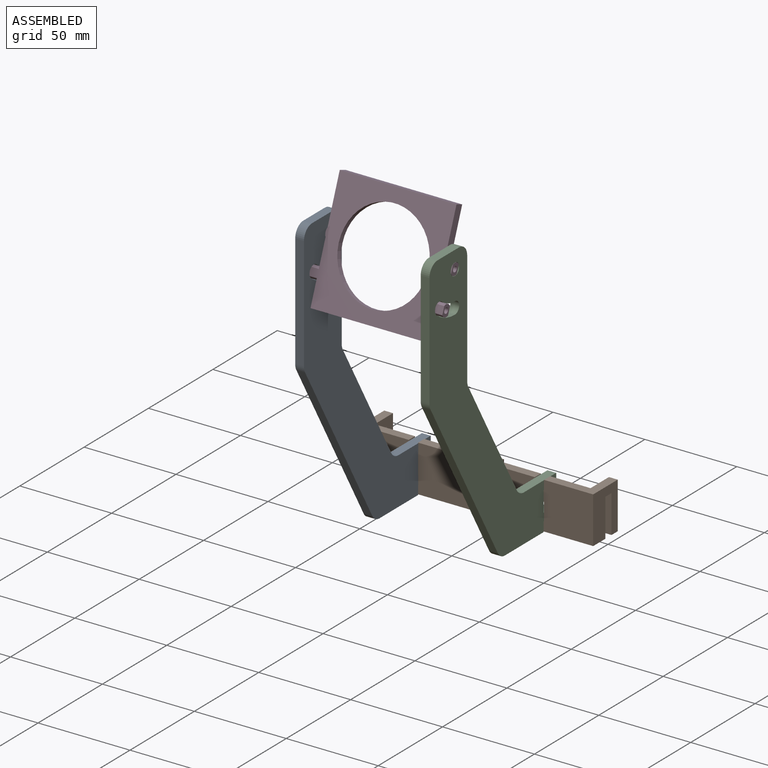
[diagram: assembled view]
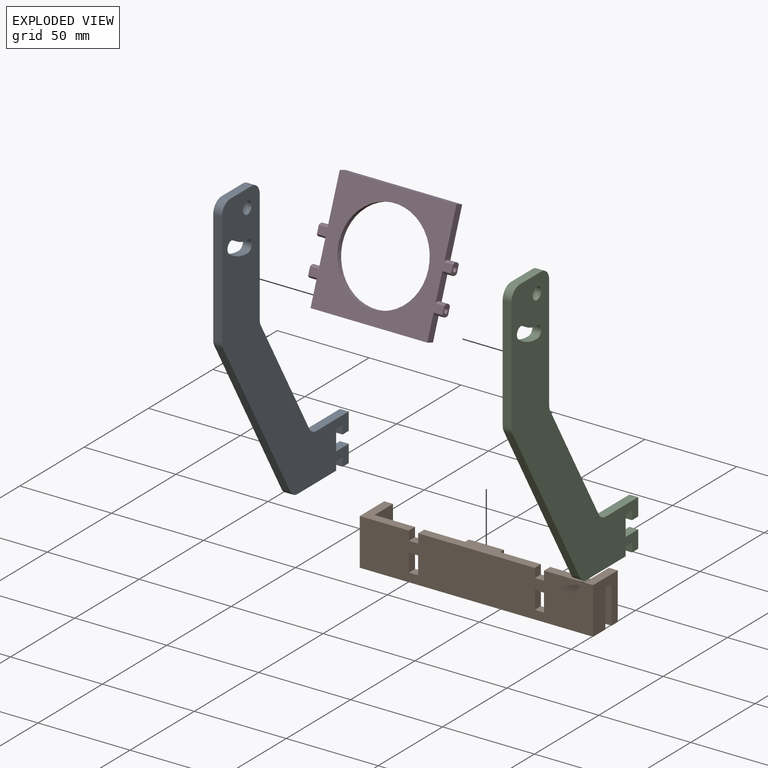
[diagram: exploded view]
GUIDED TOUR — MATED ASSEMBLY (Onshape document 58cdf79a72d10c0f7b2a12ae, AutoMate assembly 58cdf79a72d10c0f7b2a12ae_6b5fa0cb3d8d561fa44b1c68_1ecf127a2d13dc4be6b9e49f_default)

This assembly has 4 components, labeled P0..P3 below (a component is one placed occurrence of a part; the same part can appear more than once), held together by 2 mates. A mate is a constraint between two components; its type names the relative motion it leaves free:
  FASTENED — locks the two components together rigidly (no relative motion),
  REVOLUTE — leaves rotation about the listed axis free (a hinge).
Axis/direction vectors are unit vectors and 'through' points are millimeter coordinates, both in the assembly's world frame.

MATES
  1. REVOLUTE "Revolute 1": P2 <-> P3, axis (1.000, 0.000, 0.000) through (-71.74, -59.29, 140.84) mm
  2. FASTENED "Fastened 3": P2 <-> P1, direction (0.000, 0.000, -1.000) through (-74.12, 12.12, 5.90) mm

ASSEMBLY ORDER
  1. P3 — the base component [order verified]
  2. P2 [order verified]
  3. P0 [order verified]
  4. P1 [order verified]
(P0, P2 verified with a relaxed clearance tolerance: the source model stores slight part interference there.)
Order-tag legend:
  [order verified] — this step's position reverses a verified removal order: the component was checked to insert without passing through the ones already placed.

Of the 4 components, 1 carries the full construction recipe — the FeatureScript program that regenerates the part's solid from scratch; the rest are supplied as boundary geometry only.
Each toured component is shown spotlighted twice — in the assembled view, then in the exploded view, where a leader line traces a displaced component back to its assembled socket (saturated green if recipe-attached, orange if geometry-only; every other component desaturated gray) — followed by its recipe or geometry summary and the mates that hold it.
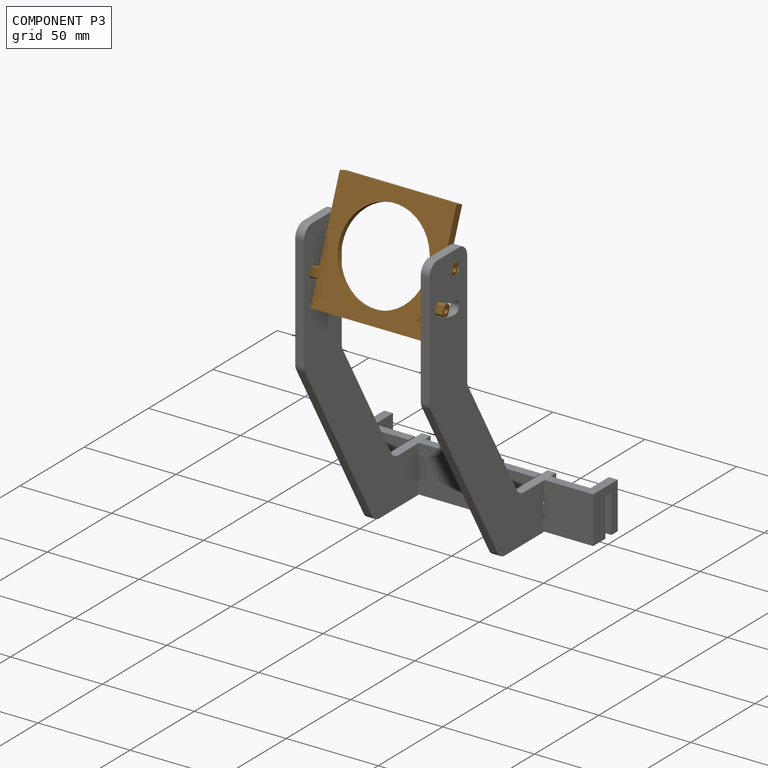
[diagram: component P3 — assembled]
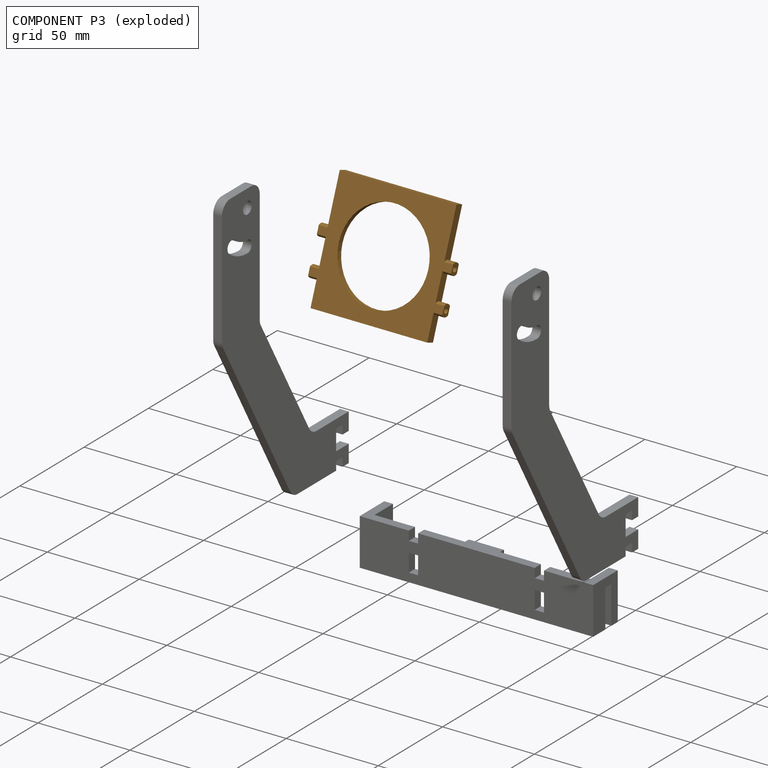
[diagram: component P3 — exploded]
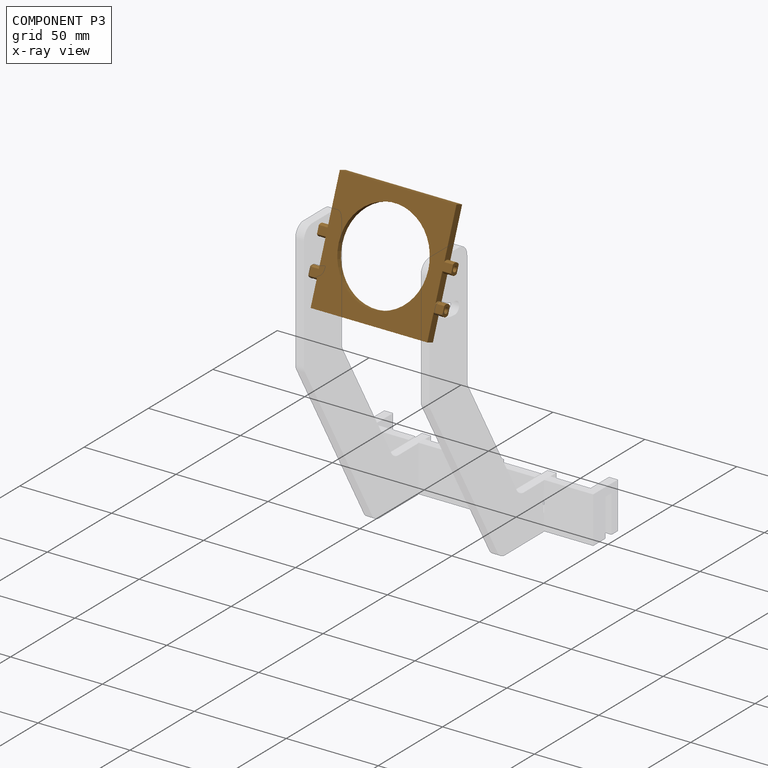
[diagram: component P3 — x-ray view]
COMPONENT P3 — geometry summary (no construction recipe available for this part):
  bounding box: 73.0 x 63.5 x 4.8 mm
  B-rep topology: 1 solid, 33 faces, 166 edges
  volume: 9212 mm^3 (42% of its bounding box)
  symmetry: mirror-symmetric across its x mid-plane
Held by: REVOLUTE mate "Revolute 1" to P2.
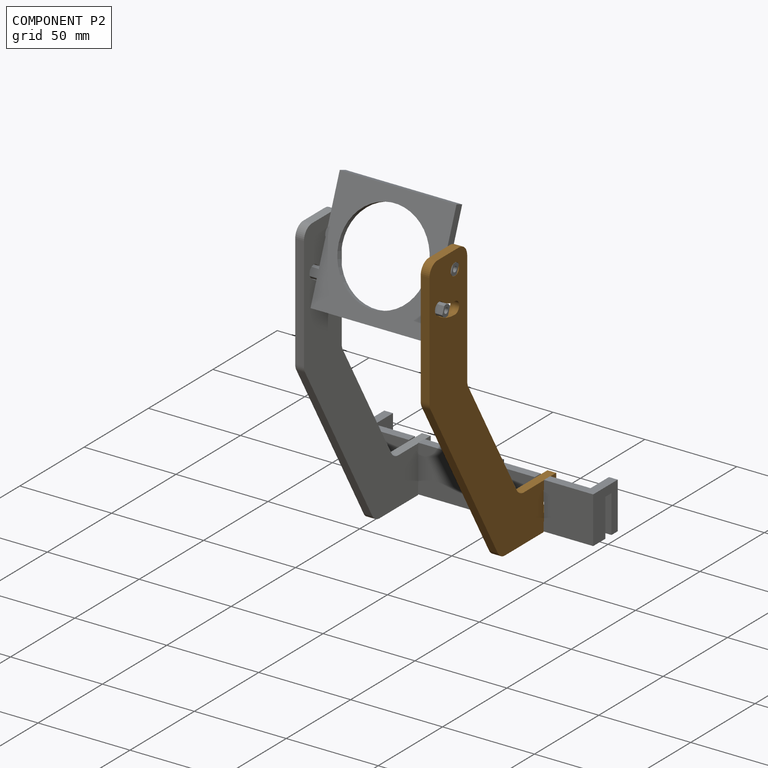
[diagram: component P2 — assembled]
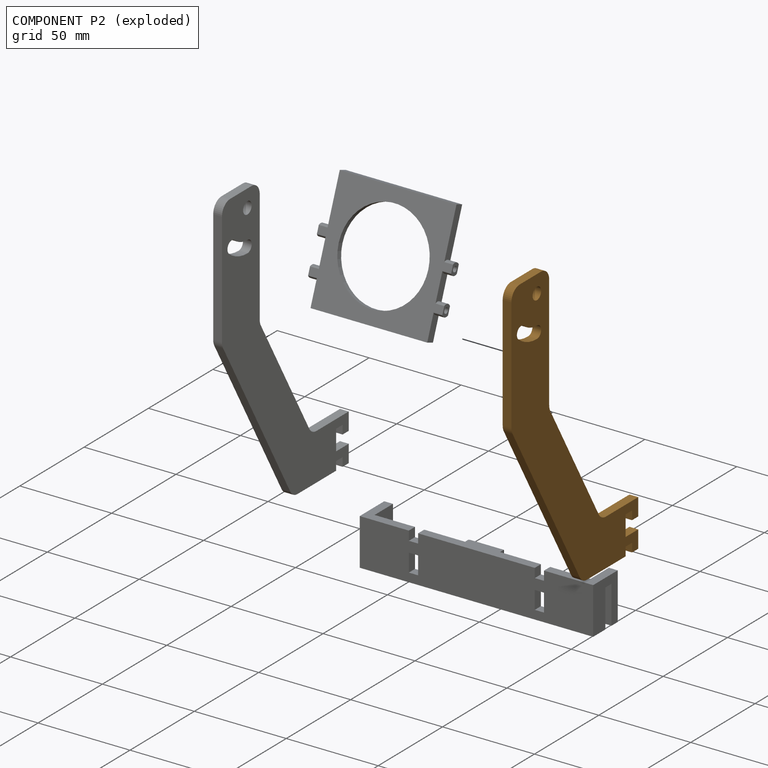
[diagram: component P2 — exploded]
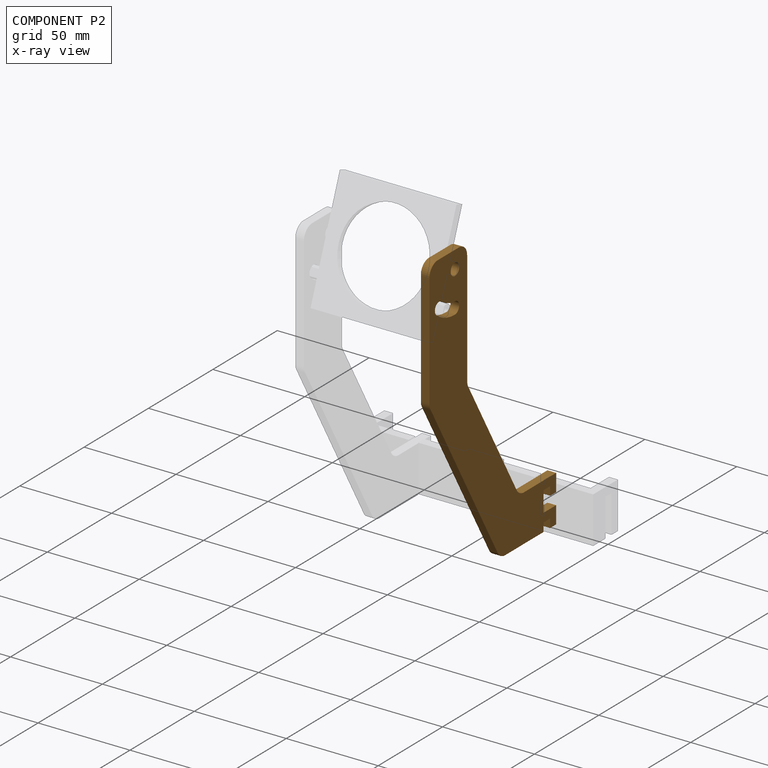
[diagram: component P2 — x-ray view]
COMPONENT P2 — geometry summary (no construction recipe available for this part):
  bounding box: 165.1 x 98.5 x 4.8 mm
  B-rep topology: 1 solid, 31 faces, 176 edges
  volume: 24311 mm^3 (31% of its bounding box)
  symmetry: mirror-symmetric across its x mid-plane
Held by: REVOLUTE mate "Revolute 1" to P3; FASTENED mate "Fastened 3" to P1.
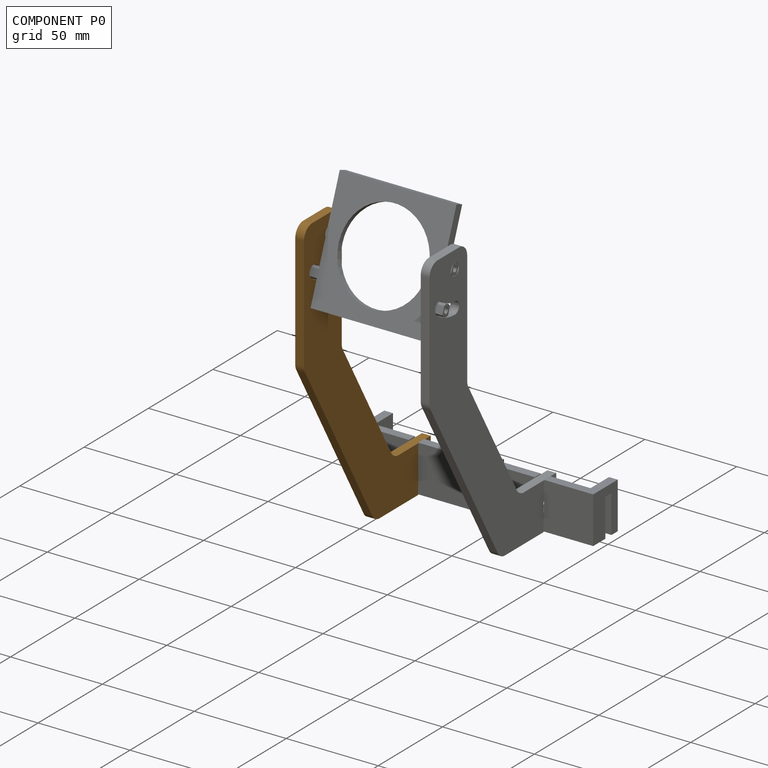
[diagram: component P0 — assembled]
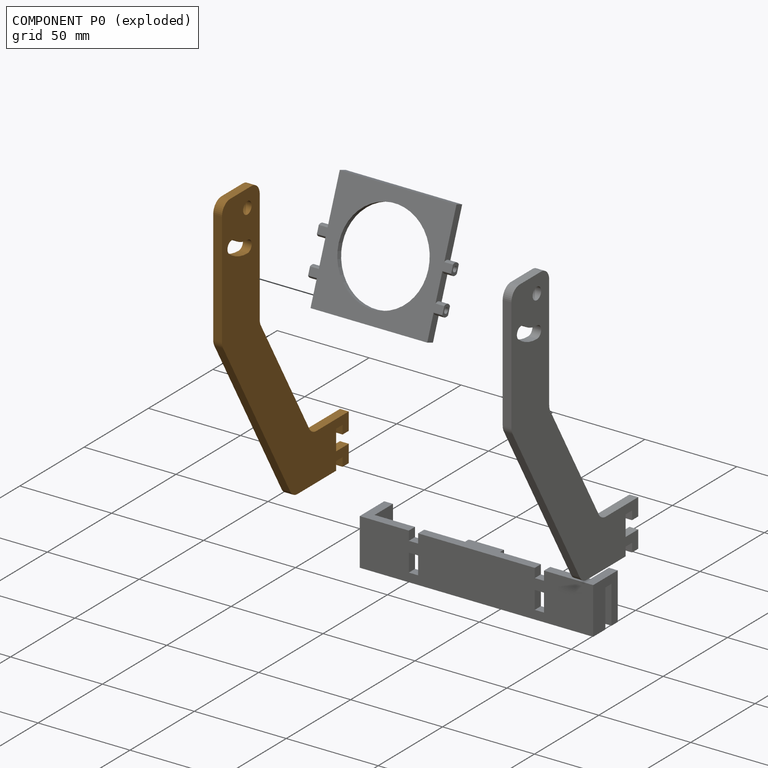
[diagram: component P0 — exploded]
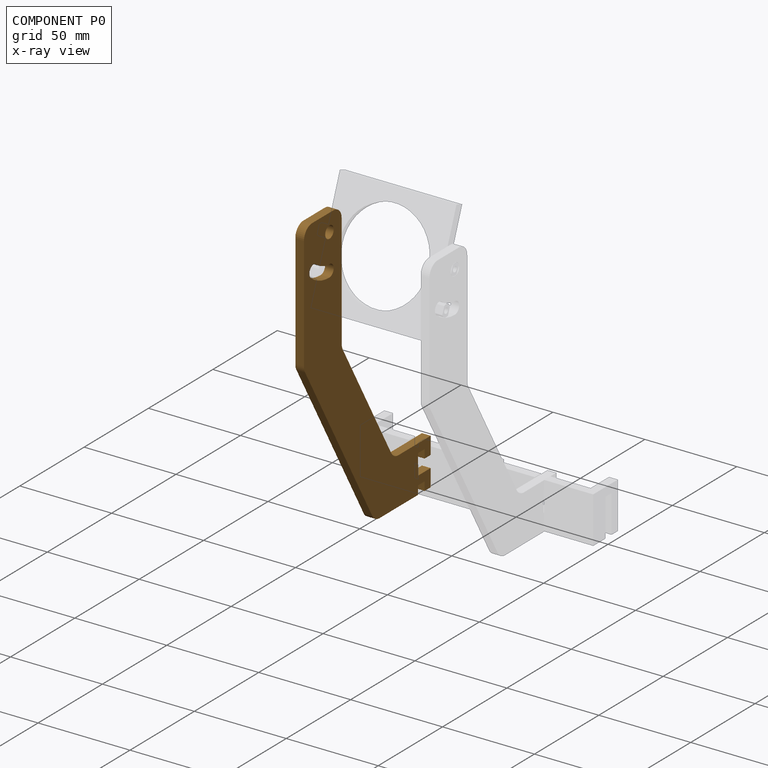
[diagram: component P0 — x-ray view]
COMPONENT P0 — geometry summary (no construction recipe available for this part):
  bounding box: 165.1 x 98.5 x 4.8 mm
  B-rep topology: 1 solid, 31 faces, 176 edges
  volume: 24311 mm^3 (31% of its bounding box)
  symmetry: mirror-symmetric across its x mid-plane
Held by: no mates (free).
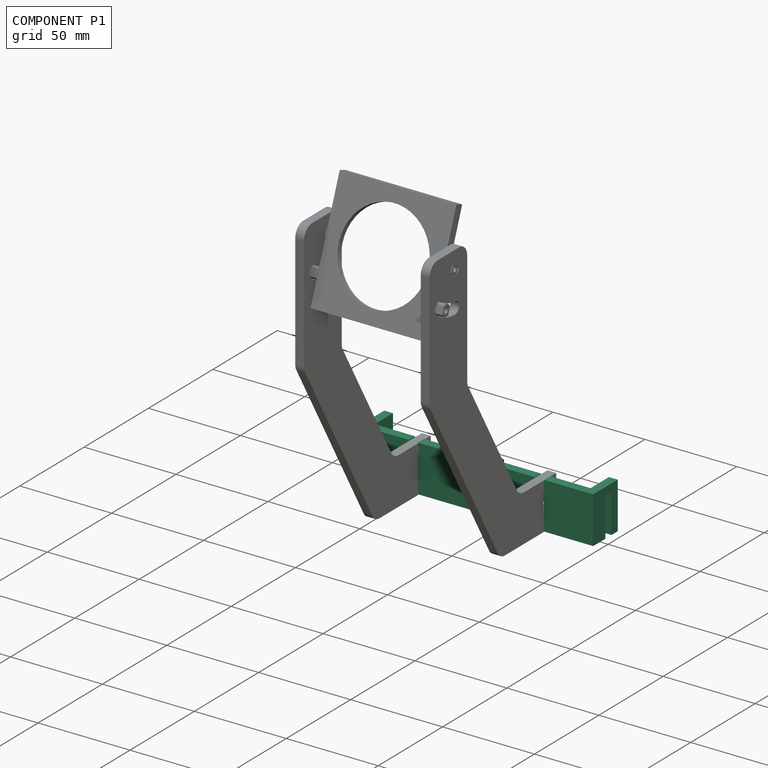
[diagram: component P1 — assembled]
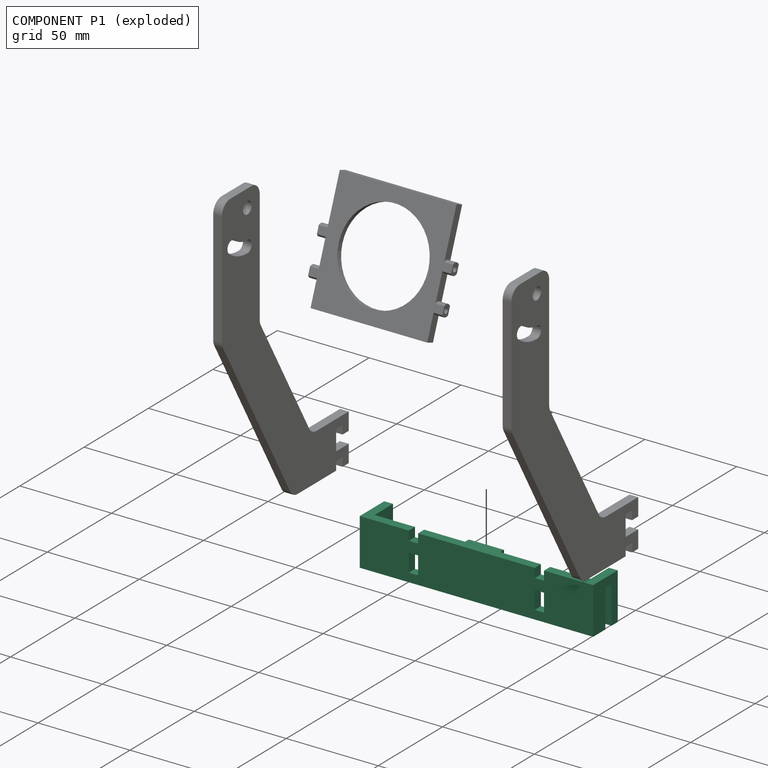
[diagram: component P1 — exploded]
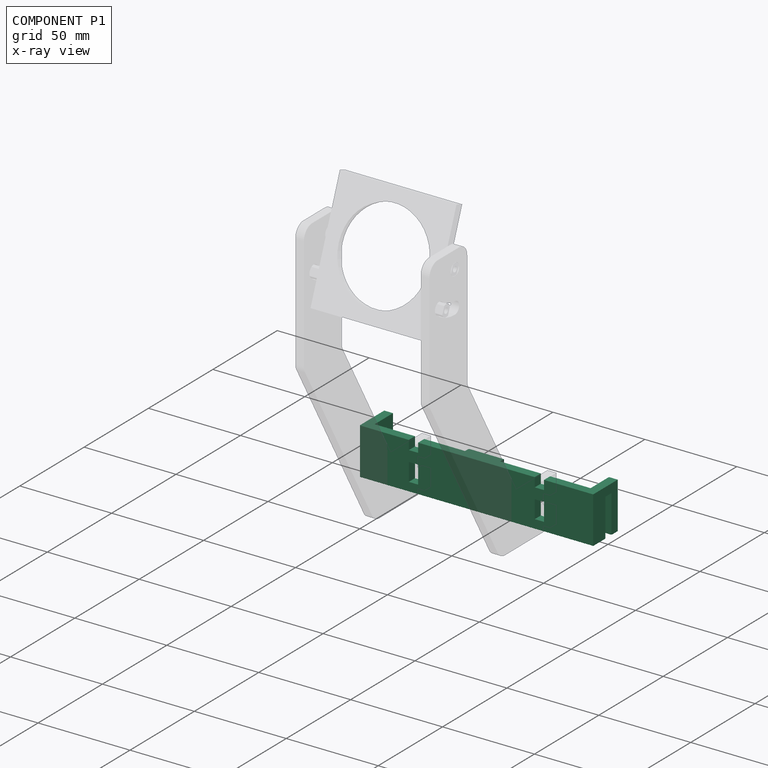
[diagram: component P1 — x-ray view]
COMPONENT P1 — recipe-attached (CADFS 00630429, mesh-verified: the recipe's output STEP matches this component's geometry to below the mesh-comparison resolution (tessellation chordal tolerance ~0.196 mm)).
Held by: FASTENED mate "Fastened 3" to P2.
Construction recipe (FeatureScript — the CAD program that rebuilds this solid; sketch coordinates are in the units given by the * unit suffixes, e.g. mm):

FeatureScript 1511;
import(path : "onshape/std/geometry.fs", version : "1511.0");
import(path : "onshape/std/common.fs", version : "1511.0");
const mm = millimeter;
const VERTEX = EntityType.VERTEX;
const EDGE = EntityType.EDGE;
const FACE = EntityType.FACE;
const BODY = EntityType.BODY;
function v(x, y){return vector(x, y);}
function OD(order){return orderDisambiguation(order);}
function OSD(set){return originalSetDisambiguation(set);}
function TD(topology){return topologyDisambiguation(topology);}
function TDD(query){return trueDependencyDisambiguation(query);}
function sQuery(a, b, c) {return sketchEntityQuery(a, b, c);}

annotation { "Feature Type Name" : "Feature", "Feature Type Description" : "" }
export const myFeature = defineFeature(function(context is Context, id is Id, definition is map)
    precondition{}
    {
        {
            var Q0;
            Q0=qCreatedBy(makeId("Front.planeOp"),FACE);
            var sketch = newSketch(context, id + "F0", { "sketchPlane" : qUnion([Q0])});
            skLineSegment(sketch, "E0.bottom", {"start": v(0, 0) * mm, "end": v(127, 0) * mm});
            skLineSegment(sketch, "E0.top", {"start": v(0, 25.4) * mm, "end": v(127, 25.4) * mm});
            skLineSegment(sketch, "E0.left", {"start": v(0, 0) * mm, "end": v(0, 25.4) * mm});
            skLineSegment(sketch, "E0.right", {"start": v(127, 0) * mm, "end": v(127, 25.4) * mm});
            skSolve(sketch);
        }
        {
            var Q0;
            Q0=makeQuery(id+"F0.imprint","IMPRINT",FACE,{"disambiguationData":[TD([[makeQuery(id+"F0.imprint","IMPRINT",EDGE,{"derivedFrom":sQuery(id+"F0.wireOp",EDGE,"E0.bottom")}),1.0]])]});
            extrude(context, id + "F1", {"entities" : qUnion([Q0]), "depth" : 4.76 * mm});
        }
        {
            var Q0;
            Q0=makeQuery(id+"F1.opExtrude","SWEPT_FACE",FACE,{"disambiguationData":[OSD([sQuery(id+"F0.wireOp",EDGE,"E0.right")])]});
            var sketch = newSketch(context, id + "F2", { "sketchPlane" : qUnion([Q0])});
            skLineSegment(sketch, "E1", {"start": v(-4.76, 25.4) * mm, "end": v(-19.05, 25.4) * mm});
            skLineSegment(sketch, "E2", {"start": v(-19.05, 25.4) * mm, "end": v(-19.05, 0) * mm});
            skLineSegment(sketch, "E3", {"start": v(-19.05, 0) * mm, "end": v(-14.29, 0) * mm});
            skLineSegment(sketch, "E4", {"start": v(-14.29, 0) * mm, "end": v(-14.29, 20.64) * mm});
            skLineSegment(sketch, "E5", {"start": v(-14.29, 20.64) * mm, "end": v(-9.53, 20.64) * mm});
            skLineSegment(sketch, "E6", {"start": v(-9.53, 20.64) * mm, "end": v(-9.53, 0) * mm});
            skLineSegment(sketch, "E7", {"start": v(-9.53, 0) * mm, "end": v(-4.76, 0) * mm});
            skLineSegment(sketch, "E8", {"start": v(-4.76, 0) * mm, "end": v(-4.76, 25.4) * mm});
            skSolve(sketch);
        }
        {
            var Q0;
            Q0=makeQuery(id+"F2.imprint","IMPRINT",FACE,{"disambiguationData":[TD([[makeQuery(id+"F2.imprint","IMPRINT",EDGE,{"derivedFrom":sQuery(id+"F2.wireOp",EDGE,"E1")}),1.0]])]});
            extrude(context, id + "F3", {"entities" : qUnion([Q0]), "operationType" : NewBodyOperationType.ADD, "oppositeDirection" : true, "depth" : 4.76 * mm});
        }
        {
            var Q0;
            Q0=makeQuery(id+"F1.opExtrude","SWEPT_FACE",FACE,{"disambiguationData":[OSD([sQuery(id+"F0.wireOp",EDGE,"E0.left")])]});
            var sketch = newSketch(context, id + "F4", { "sketchPlane" : qUnion([Q0])});
            skLineSegment(sketch, "E9.0.0", {"start": v(4.76, 0) * mm, "end": v(4.76, 25.4) * mm});
            skLineSegment(sketch, "E9.0.1", {"start": v(9.53, 0) * mm, "end": v(4.76, 0) * mm});
            skLineSegment(sketch, "E9.0.2", {"start": v(9.53, 20.64) * mm, "end": v(9.53, 0) * mm});
            skLineSegment(sketch, "E9.0.3", {"start": v(14.29, 20.64) * mm, "end": v(9.53, 20.64) * mm});
            skLineSegment(sketch, "E9.0.4", {"start": v(14.29, 0) * mm, "end": v(14.29, 20.64) * mm});
            skLineSegment(sketch, "E9.0.5", {"start": v(19.05, 0) * mm, "end": v(14.29, 0) * mm});
            skLineSegment(sketch, "E9.0.6", {"start": v(19.05, 25.4) * mm, "end": v(19.05, 0) * mm});
            skLineSegment(sketch, "E9.0.7", {"start": v(4.76, 25.4) * mm, "end": v(19.05, 25.4) * mm});
            skSolve(sketch);
        }
        {
            var Q0;
            Q0=makeQuery(id+"F4.imprint","IMPRINT",FACE,{"disambiguationData":[TD([[makeQuery(id+"F4.imprint","IMPRINT",EDGE,{"derivedFrom":sQuery(id+"F4.wireOp",EDGE,"E9.0.0")}),-1.0]])]});
            extrude(context, id + "F5", {"entities" : qUnion([Q0]), "operationType" : NewBodyOperationType.ADD, "oppositeDirection" : true, "depth" : 4.76 * mm});
        }
        {
            var Q0;
            Q0=makeQuery(id+"F1.opExtrude","CAP_FACE",FACE,{"disambiguationData":[OSD([sQuery(id+"F0.wireOp",EDGE,"E0.bottom"),sQuery(id+"F0.wireOp",EDGE,"E0.top"),sQuery(id+"F0.wireOp",EDGE,"E0.left"),sQuery(id+"F0.wireOp",EDGE,"E0.right")])],"isStart":false});
            var sketch = newSketch(context, id + "F6", { "sketchPlane" : qUnion([Q0])});
            skLineSegment(sketch, "E10", {"start": v(63.5, 25.4) * mm, "end": v(63.5, 0) * mm, "construction": true});
            skPoint(sketch, "E11", {"position": v(63.5, 12.7) * mm});
            skLineSegment(sketch, "E12.bottom", {"start": v(57.58, 25.4) * mm, "end": v(73.02, 25.4) * mm});
            skLineSegment(sketch, "E12.top", {"start": v(57.58, 0) * mm, "end": v(69.42, 0) * mm});
            skLineSegment(sketch, "E12.left", {"start": v(53.97, 21.8) * mm, "end": v(53.97, 3.6) * mm});
            skLineSegment(sketch, "E12.right", {"start": v(73.02, 25.4) * mm, "end": v(73.02, 3.6) * mm});
            skLineSegment(sketch, "E13", {"start": v(53.97, 25.4) * mm, "end": v(73.03, 0) * mm, "construction": true});
            skPoint(sketch, "E14.visualSharp", {"position": v(53.97, 25.4) * mm});
            skPoint(sketch, "E15.visualSharp", {"position": v(73.02, 25.4) * mm});
            skPoint(sketch, "E16.visualSharp", {"position": v(73.02, 0) * mm});
            skArc(sketch, "E16.filletArc", {"start": v(69.42, 0) * mm, "mid": v(71.97, 1.05) * mm, "end": v(73.02, 3.6) * mm});
            skPoint(sketch, "E17.visualSharp", {"position": v(53.97, 0) * mm});
            skArc(sketch, "E17.filletArc", {"start": v(53.97, 3.6) * mm, "mid": v(55.03, 1.05) * mm, "end": v(57.58, 0) * mm});
            skLineSegment(sketch, "E18", {"start": v(57.58, 25.4) * mm, "end": v(53.97, 25.4) * mm});
            skLineSegment(sketch, "E19", {"start": v(53.97, 21.8) * mm, "end": v(53.97, 25.4) * mm});
            skSolve(sketch);
        }
        {
            var Q0;
            Q0=makeQuery(id+"F6.imprint","IMPRINT",FACE,{"disambiguationData":[TD([[makeQuery(id+"F6.imprint","IMPRINT",EDGE,{"derivedFrom":sQuery(id+"F6.wireOp",EDGE,"E12.bottom")}),-1.0]])]});
            extrude(context, id + "F7", {"entities" : qUnion([Q0]), "operationType" : NewBodyOperationType.ADD, "depth" : 4.76 * mm});
        }
        {
            var Q0;
            Q0=makeQuery(id+"F7.opExtrude","CAP_FACE",FACE,{"disambiguationData":[OSD([sQuery(id+"F6.wireOp",EDGE,"E12.bottom"),sQuery(id+"F6.wireOp",EDGE,"E12.top"),sQuery(id+"F6.wireOp",EDGE,"E12.left"),sQuery(id+"F6.wireOp",EDGE,"E12.right"),sQuery(id+"F6.wireOp",EDGE,"E16.filletArc"),sQuery(id+"F6.wireOp",EDGE,"E17.filletArc"),sQuery(id+"F6.wireOp",EDGE,"E19")])],"isStart":false});
            fillet(context, id + "F8", {"entities" : qUnion([Q0]), "radius" : 2.54 * mm, "tangentPropagation" : true, "allowEdgeOverflow" : false});
        }
        {
            var Q0;
            Q0=makeQuery(id+"F1.opExtrude","CAP_FACE",FACE,{"disambiguationData":[OSD([sQuery(id+"F0.wireOp",EDGE,"E0.bottom"),sQuery(id+"F0.wireOp",EDGE,"E0.top"),sQuery(id+"F0.wireOp",EDGE,"E0.left"),sQuery(id+"F0.wireOp",EDGE,"E0.right")])],"isStart":true});
            var sketch = newSketch(context, id + "F9", { "sketchPlane" : qUnion([Q0])});
            skLineSegment(sketch, "E20", {"start": v(-63.5, 25.4) * mm, "end": v(-63.5, 0) * mm, "construction": true});
            skLineSegment(sketch, "E21", {"start": v(-95.25, 25.4) * mm, "end": v(-95.25, 0) * mm, "construction": true});
            skLineSegment(sketch, "E22", {"start": v(-31.75, 25.4) * mm, "end": v(-31.75, 0) * mm, "construction": true});
            skLineSegment(sketch, "E23.bottom", {"start": v(-95.25, 25.4) * mm, "end": v(-100.27, 25.4) * mm});
            skLineSegment(sketch, "E23.top", {"start": v(-95.25, 20.38) * mm, "end": v(-100.27, 20.38) * mm});
            skLineSegment(sketch, "E23.left", {"start": v(-95.25, 25.4) * mm, "end": v(-95.25, 20.38) * mm});
            skLineSegment(sketch, "E23.right", {"start": v(-100.27, 25.4) * mm, "end": v(-100.27, 20.38) * mm});
            skLineSegment(sketch, "E24.bottom", {"start": v(-95.25, 14.54) * mm, "end": v(-100.27, 14.54) * mm});
            skLineSegment(sketch, "E24.top", {"start": v(-95.25, 4.76) * mm, "end": v(-100.27, 4.76) * mm});
            skLineSegment(sketch, "E24.left", {"start": v(-95.25, 14.54) * mm, "end": v(-95.25, 4.76) * mm});
            skLineSegment(sketch, "E24.right", {"start": v(-100.27, 14.54) * mm, "end": v(-100.27, 4.76) * mm});
            skLineSegment(sketch, "E25.0.MirrorCS", {"start": v(-31.75, 25.4) * mm, "end": v(-26.73, 25.4) * mm});
            skLineSegment(sketch, "E25.1.MirrorCS", {"start": v(-31.75, 20.38) * mm, "end": v(-26.73, 20.38) * mm});
            skLineSegment(sketch, "E25.2.MirrorCS", {"start": v(-31.75, 14.54) * mm, "end": v(-31.75, 4.76) * mm});
            skLineSegment(sketch, "E25.3.MirrorCS", {"start": v(-26.73, 14.54) * mm, "end": v(-26.73, 4.76) * mm});
            skLineSegment(sketch, "E25.4.MirrorCS", {"start": v(-31.75, 14.54) * mm, "end": v(-26.73, 14.54) * mm});
            skLineSegment(sketch, "E25.5.MirrorCS", {"start": v(-31.75, 4.76) * mm, "end": v(-26.73, 4.76) * mm});
            skLineSegment(sketch, "E25.6.MirrorCS", {"start": v(-26.73, 25.4) * mm, "end": v(-26.73, 20.38) * mm});
            skLineSegment(sketch, "E25.7.MirrorCS", {"start": v(-31.75, 25.4) * mm, "end": v(-31.75, 20.38) * mm});
            skSolve(sketch);
        }
        {
            var Q0;
            {Q0=qUnion([makeQuery(id+"F9.imprint","IMPRINT",FACE,{"disambiguationData":[TD([[makeQuery(id+"F9.imprint","IMPRINT",EDGE,{"derivedFrom":sQuery(id+"F9.wireOp",EDGE,"E23.bottom")}),1.0]])]}),makeQuery(id+"F9.imprint","IMPRINT",FACE,{"disambiguationData":[TD([[makeQuery(id+"F9.imprint","IMPRINT",EDGE,{"derivedFrom":sQuery(id+"F9.wireOp",EDGE,"E24.bottom")}),1.0]])]}),makeQuery(id+"F9.imprint","IMPRINT",FACE,{"disambiguationData":[TD([[makeQuery(id+"F9.imprint","IMPRINT",EDGE,{"derivedFrom":sQuery(id+"F9.wireOp",EDGE,"E25.0.MirrorCS")}),1.0]])]}),makeQuery(id+"F9.imprint","IMPRINT",FACE,{"disambiguationData":[TD([[makeQuery(id+"F9.imprint","IMPRINT",EDGE,{"derivedFrom":sQuery(id+"F9.wireOp",EDGE,"E25.2.MirrorCS")}),1.0]])]})]);}
            extrude(context, id + "F10", {"entities" : qUnion([Q0]), "operationType" : NewBodyOperationType.REMOVE, "oppositeDirection" : true, "depth" : 25.4 * mm});
        }
    });
PROVENANCE & LICENSES
Assembly (occurrences, transforms, mates, per-part STEP geometry): AutoMate dataset, Zenodo record 7776208, CC0.
Construction recipes: CADFS (HuggingFace VladPyatov/CADFS, CC-BY-4.0, layered over the ABC dataset), FeatureScript reconstruction programs keyed by ABC model id.
Join: ABC meta listings map ABC model id -> Onshape documentId; within a shared document, parts are matched by geometric signature (bounding-box dims + volume at 0.1% relative tolerance, exact B-rep face/solid counts).
Verification: 1 of this assembly's 4 components carries a recipe attachment, and every attachment is mesh-verified: the CADFS STEP and the AutoMate member STEP were compared as meshes in their shared local frame (symmetric sampled-point-to-mesh distance); worst across the 1 attachment: below the mesh-comparison resolution (tessellation chordal tolerance ~0.196 mm) on a 131 mm part.
Renders: orthographic iso camera (az 35 / el 25); the floor grid conveys scale (grid pitch printed in each image; no ruler). In the exploded view each component is displaced by its stored offset vector: the offsets alone carry the explosion direction (mate normal/axis signs are not orientation cues and do not encode it), and separation distances are assigned per mate-chain, not proportionally to assembly-order depth.
